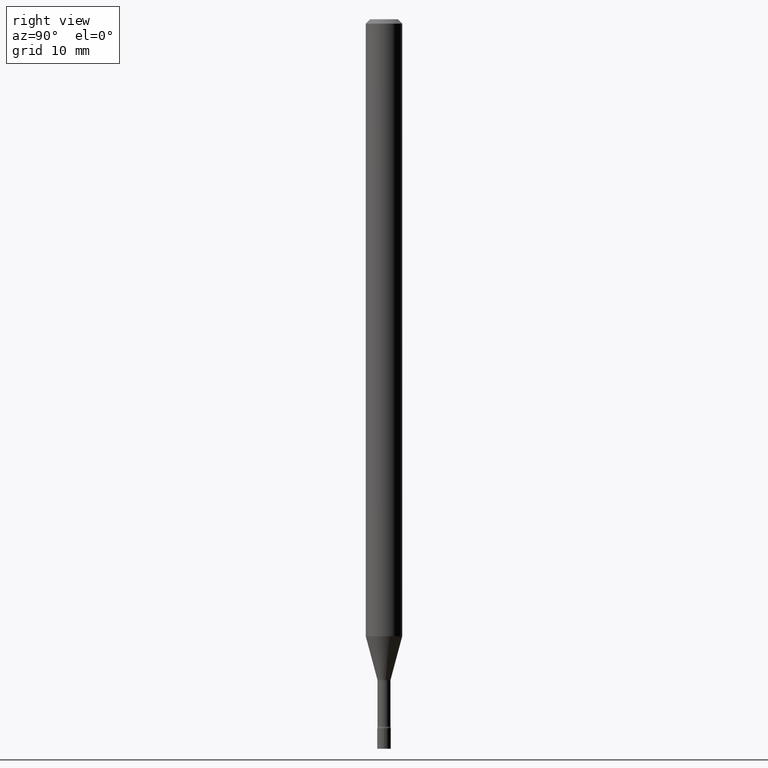
[diagram: clean part render]
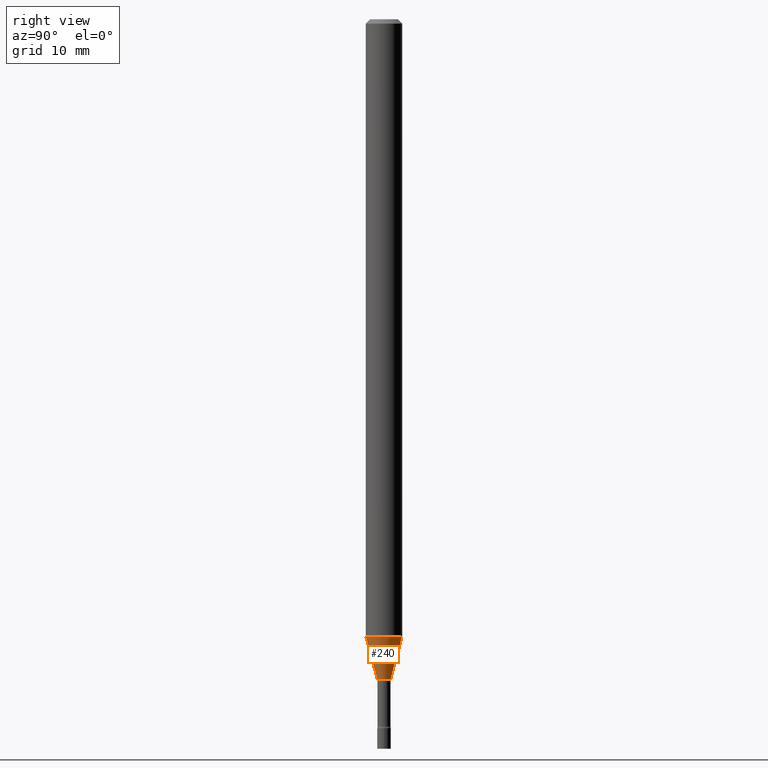
[diagram: same view with one face highlighted and labeled with its STEP entity id]
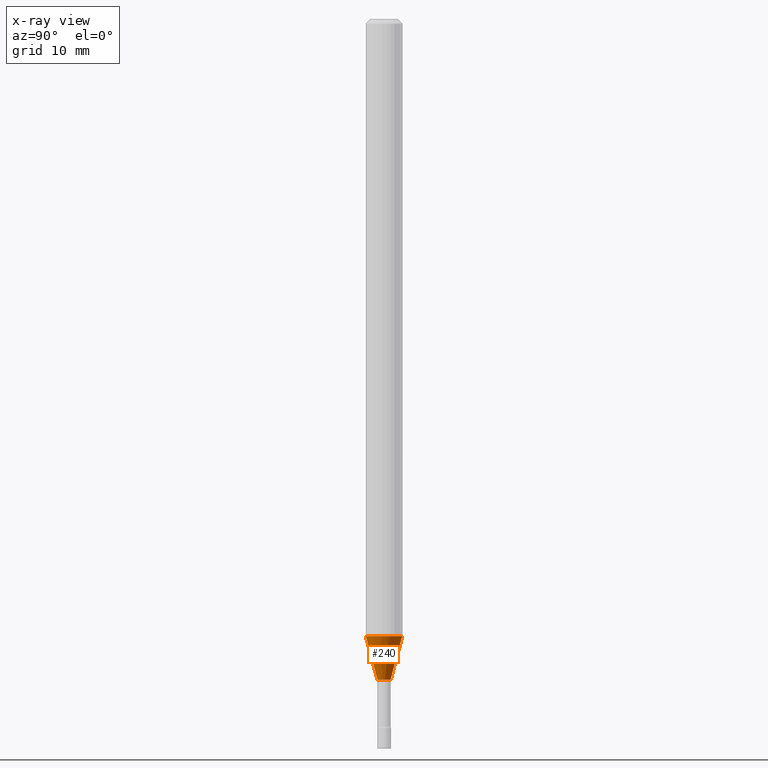
[diagram: x-ray of the same camera — body ghosted, the highlighted face saturated]
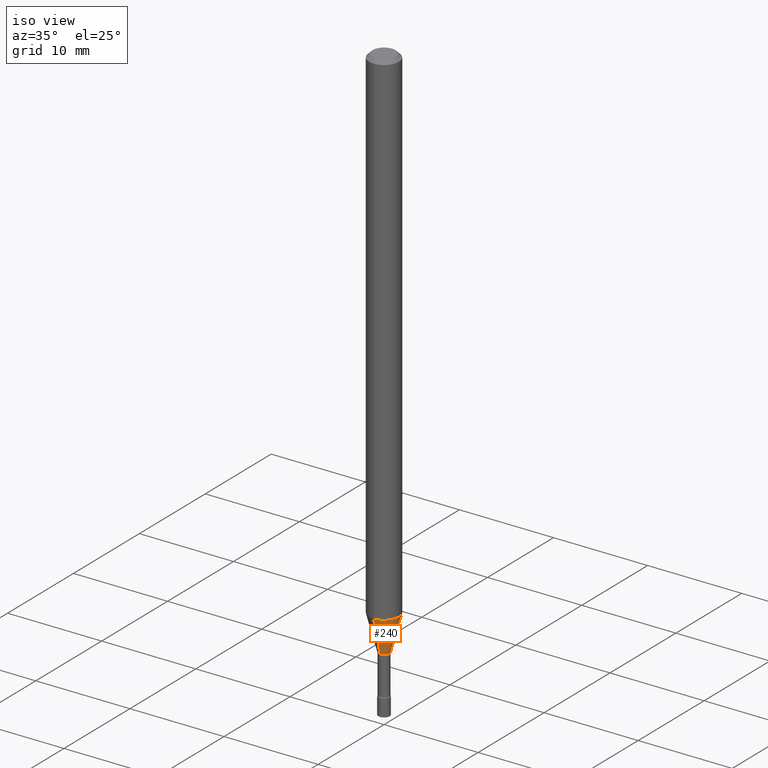
[diagram: same view with one face highlighted and labeled with its STEP entity id]
A machine part, right view. The second image highlights one B-rep face of the part: STEP entity #240.
The next image is the same camera in x-ray: the body ghosted, the highlighted face saturated — about 0% of this face is hidden behind the body in this view.
A second angle (iso view) of the same face is appended — the face is thin or edge-on in the first view.
In plain terms, the highlighted conical surface has half-angle 15 deg.
Its self-contained STEP definition (entity closure, byte-faithful):
#4 = LINE ( 'NONE', #153, #252 ) ;
#22 = FACE_OUTER_BOUND ( 'NONE', #516, .T. ) ;
#48 = CARTESIAN_POINT ( 'NONE',  ( 5.534301883144486809E-29, -7.901574216436330678E-15, -2.263092501787272948 ) ) ;
#49 = CARTESIAN_POINT ( 'NONE',  ( -1.578925554262576832E-16, -0.02261111260567187989, -2.263092501787272948 ) ) ;
#50 = ORIENTED_EDGE ( 'NONE', *, *, #100, .T. ) ;
#54 = VERTEX_POINT ( 'NONE', #242 ) ;
#70 = CIRCLE ( 'NONE', #227, 0.06250000000000000000 ) ;
#83 = DIRECTION ( 'NONE',  ( -6.982962677686265922E-15, -1.000000000000000000, 4.370956789862821150E-15 ) ) ;
#84 = DIRECTION ( 'NONE',  ( -1.807323732225329350E-15, -0.2588190451025180194, 0.9659258262890689783 ) ) ;
#87 = EDGE_CURVE ( 'NONE', #342, #379, #395, .T. ) ;
#88 = DIRECTION ( 'NONE',  ( -6.982962677686265922E-15, -1.000000000000000000, 0.000000000000000000 ) ) ;
#90 = DIRECTION ( 'NONE',  ( -6.982962677686265922E-15, -1.000000000000000000, 0.000000000000000000 ) ) ;
#100 = EDGE_CURVE ( 'NONE', #54, #301, #4, .T. ) ;
#104 = DIRECTION ( 'NONE',  ( -2.445459864664737566E-29, 3.491494143609276784E-15, 1.000000000000000000 ) ) ;
#108 = CONICAL_SURFACE ( 'NONE', #467, 0.02261111260566397996, 0.2617993877991501850 ) ;
#119 = DIRECTION ( 'NONE',  ( -2.445459864664737566E-29, 3.491494143609276784E-15, 1.000000000000000000 ) ) ;
#134 = CARTESIAN_POINT ( 'NONE',  ( 4.440892098501140893E-16, 0.06249999999999258926, -2.114225147374217961 ) ) ;
#153 = CARTESIAN_POINT ( 'NONE',  ( 1.606616180941370359E-16, 0.02261111260565608003, -2.263092501787272948 ) ) ;
#166 = ORIENTED_EDGE ( 'NONE', *, *, #508, .T. ) ;
#183 = AXIS2_PLACEMENT_3D ( 'NONE', #48, #274, #88 ) ;
#186 = CARTESIAN_POINT ( 'NONE',  ( -1.578925554262576832E-16, -0.02261111260567187989, -2.263092501787272948 ) ) ;
#191 = DIRECTION ( 'NONE',  ( 1.839019923739599526E-15, 0.2588190451025248473, 0.9659258262890670910 ) ) ;
#197 = CARTESIAN_POINT ( 'NONE',  ( 5.170252742768539848E-29, -7.381804720328540946E-15, -2.114225147374217961 ) ) ;
#216 = CARTESIAN_POINT ( 'NONE',  ( 5.534301883144486809E-29, -7.901574216436330678E-15, -2.263092501787272948 ) ) ;
#227 = AXIS2_PLACEMENT_3D ( 'NONE', #197, #119, #83 ) ;
#240 = ADVANCED_FACE ( 'NONE', ( #22 ), #108, .T. ) ;
#242 = CARTESIAN_POINT ( 'NONE',  ( 3.023754139721257598E-16, 0.02261111260565608350, -2.263092501787272948 ) ) ;
#252 = VECTOR ( 'NONE', #191, 39.37007874015748143 ) ;
#274 = DIRECTION ( 'NONE',  ( -2.445459864664737566E-29, 3.491494143609276784E-15, 1.000000000000000000 ) ) ;
#301 = VERTEX_POINT ( 'NONE', #134 ) ;
#342 = VERTEX_POINT ( 'NONE', #186 ) ;
#349 = CIRCLE ( 'NONE', #183, 0.02261111260566397996 ) ;
#372 = ORIENTED_EDGE ( 'NONE', *, *, #502, .F. ) ;
#379 = VERTEX_POINT ( 'NONE', #469 ) ;
#395 = LINE ( 'NONE', #49, #424 ) ;
#424 = VECTOR ( 'NONE', #84, 39.37007874015749564 ) ;
#467 = AXIS2_PLACEMENT_3D ( 'NONE', #216, #104, #90 ) ;
#469 = CARTESIAN_POINT ( 'NONE',  ( -4.364351673553400976E-16, -0.06250000000000741074, -2.114225147374217517 ) ) ;
#502 = EDGE_CURVE ( 'NONE', #379, #301, #70, .T. ) ;
#504 = ORIENTED_EDGE ( 'NONE', *, *, #87, .F. ) ;
#508 = EDGE_CURVE ( 'NONE', #342, #54, #349, .T. ) ;
#516 = EDGE_LOOP ( 'NONE', ( #166, #50, #372, #504 ) ) ;